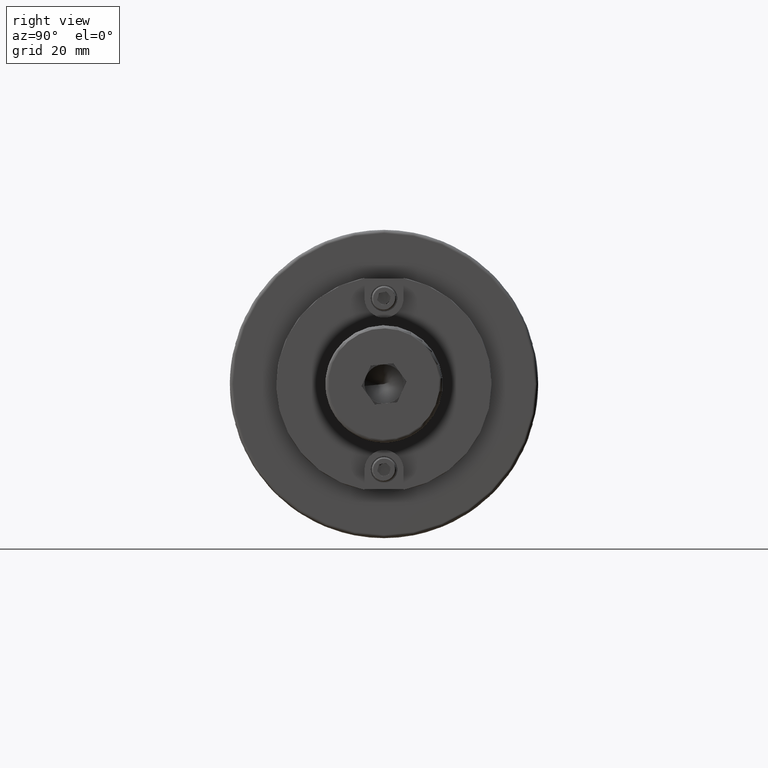
[diagram: clean part render]
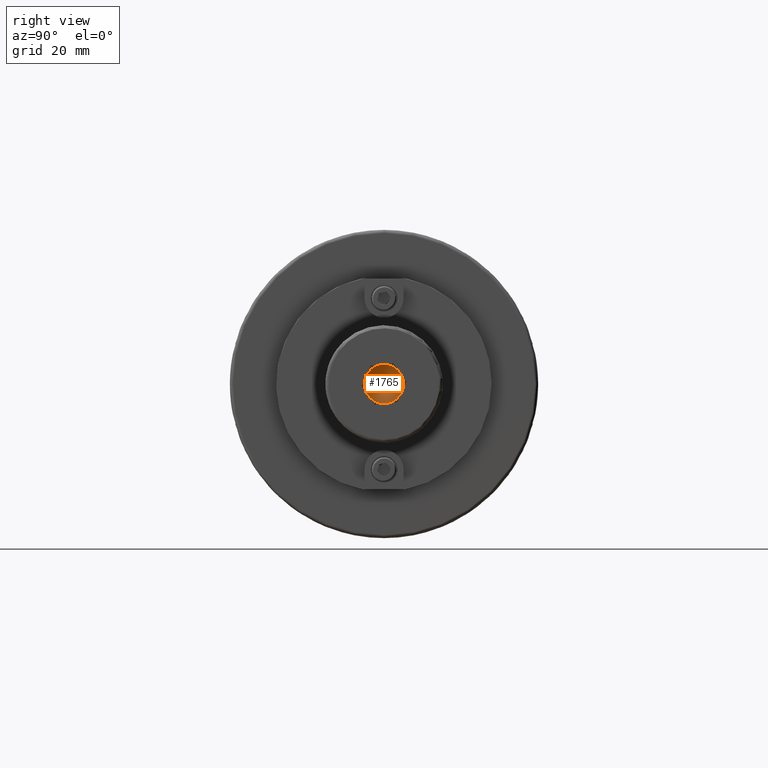
[diagram: same view with one face highlighted and labeled with its STEP entity id]
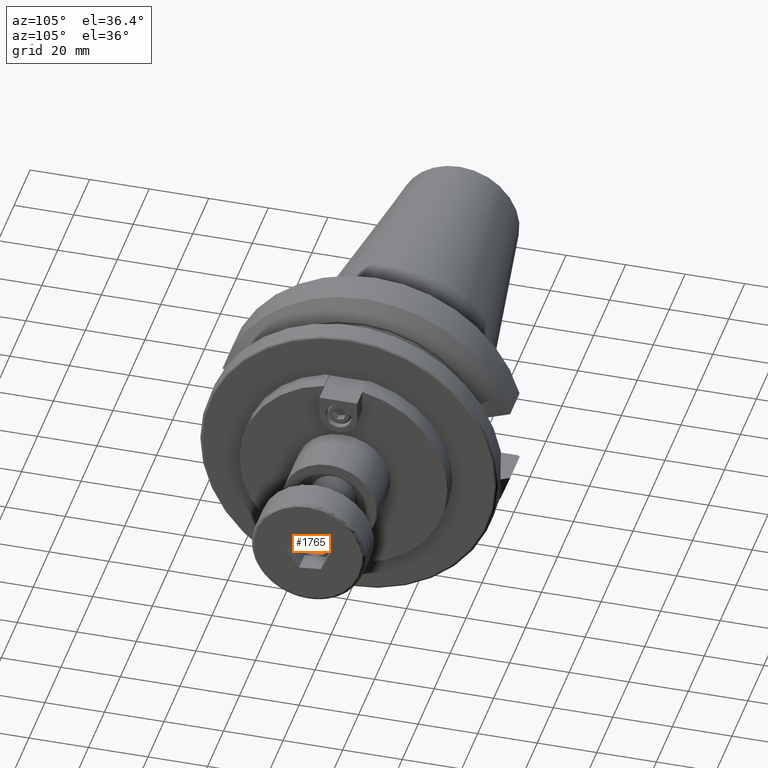
[diagram: same view with one face highlighted and labeled with its STEP entity id]
A machine part, right view. The second image highlights one B-rep face of the part: STEP entity #1765.
A second angle (auxiliary view) of the same face is appended — the face is thin or edge-on in the first view.
In plain terms, the highlighted conical surface has half-angle 59 deg.
Its self-contained STEP definition (entity closure, byte-faithful):
#130=CONICAL_SURFACE('',#2061,3.175,1.02974425867665);
#232=CIRCLE('',#2062,6.35);
#335=FACE_OUTER_BOUND('',#454,.T.);
#454=EDGE_LOOP('',(#1535,#1536,#1537));
#569=LINE('',#3214,#689);
#689=VECTOR('',#2552,3.175);
#852=VERTEX_POINT('',#3211);
#853=VERTEX_POINT('',#3213);
#1084=EDGE_CURVE('',#852,#852,#232,.T.);
#1085=EDGE_CURVE('',#852,#853,#569,.T.);
#1535=ORIENTED_EDGE('',*,*,#1084,.T.);
#1536=ORIENTED_EDGE('',*,*,#1085,.T.);
#1537=ORIENTED_EDGE('',*,*,#1085,.F.);
#1765=ADVANCED_FACE('',(#335),#130,.F.);
#2061=AXIS2_PLACEMENT_3D('',#3210,#2548,#2549);
#2062=AXIS2_PLACEMENT_3D('',#3212,#2550,#2551);
#2548=DIRECTION('center_axis',(-1.,0.,0.));
#2549=DIRECTION('ref_axis',(0.,0.,1.));
#2550=DIRECTION('center_axis',(-1.,0.,0.));
#2551=DIRECTION('ref_axis',(0.,0.,1.));
#2552=DIRECTION('',(0.515038074910054,1.04972719113862E-16,0.857167300702112));
#3210=CARTESIAN_POINT('Origin',(10.9077324654125,0.,0.));
#3211=CARTESIAN_POINT('',(9.,-7.77650717458569E-16,-6.35));
#3212=CARTESIAN_POINT('Origin',(9.,0.,0.));
#3213=CARTESIAN_POINT('',(12.815464930825,0.,0.));
#3214=CARTESIAN_POINT('',(10.9077324654125,-3.88825358729285E-16,-3.175));